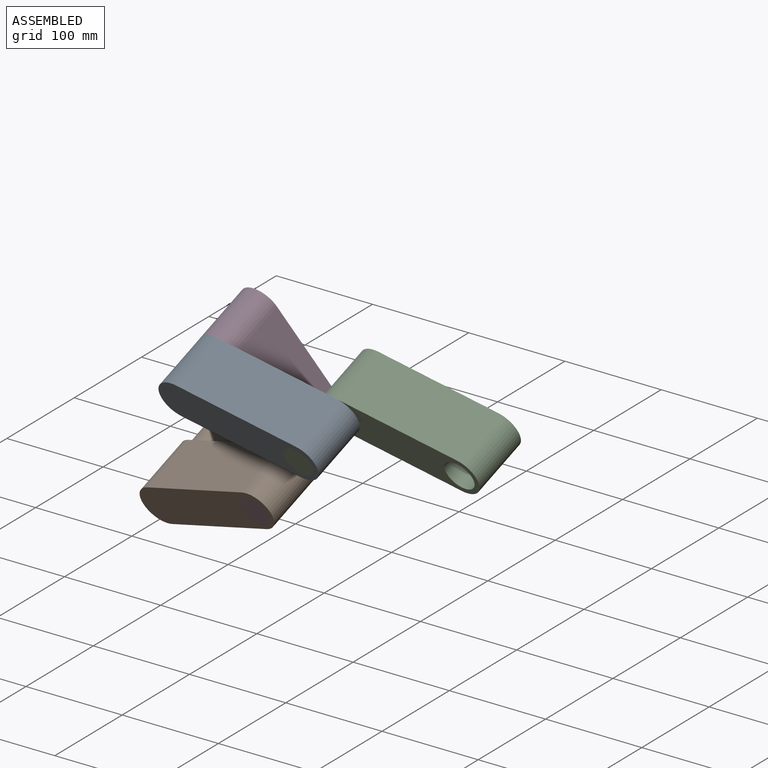
[diagram: assembled view]
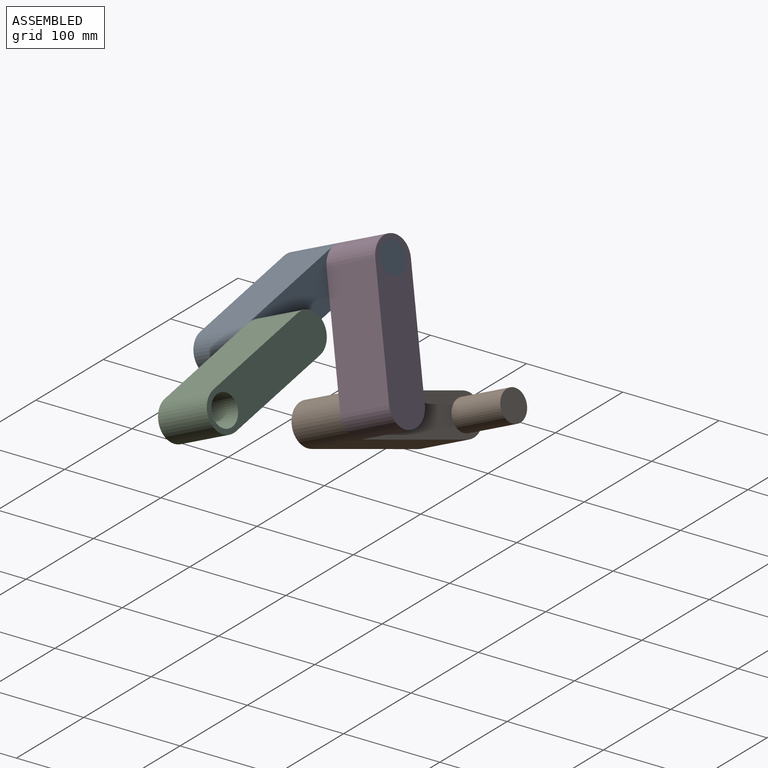
[diagram: assembled view, second angle]
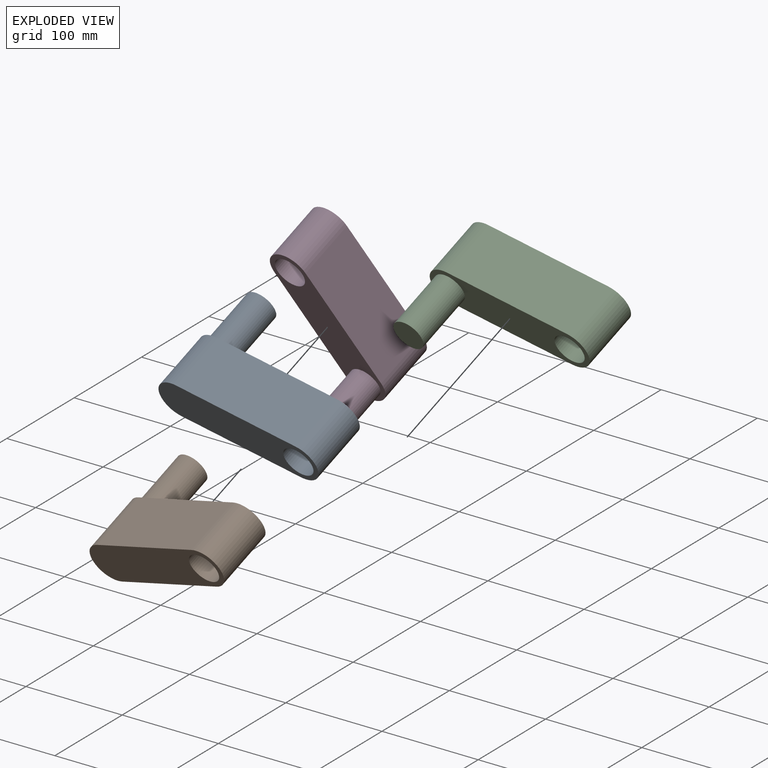
[diagram: exploded view]
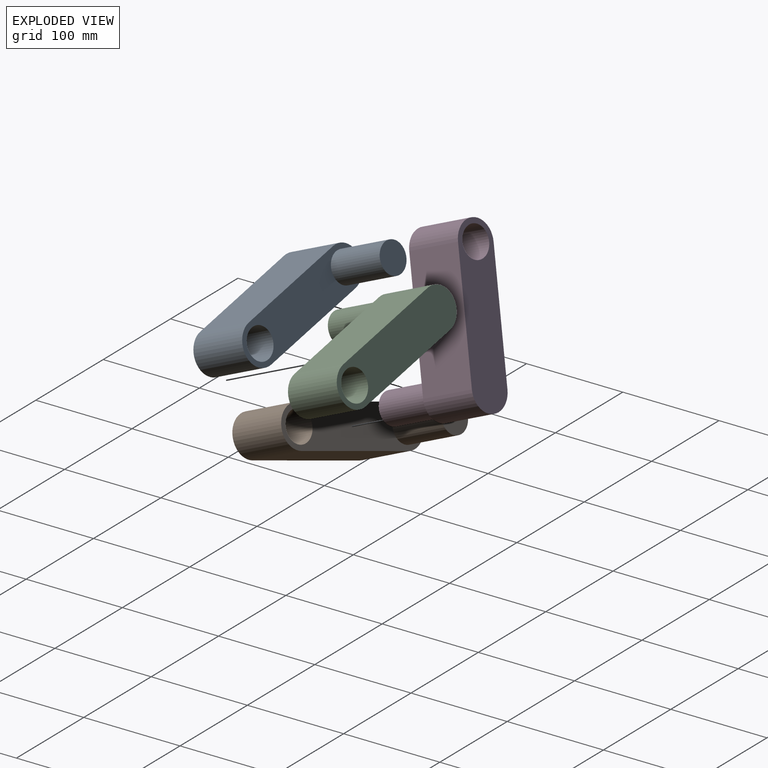
[diagram: exploded view, second angle]
ASSEMBLY  parts=4 mates=3
PART A: 9 faces, bbox 169.3x120x42.3 mm
  f0: cylinder r=21.17mm len=60mm, axis (0,1,0), area 3989.8mm2, adj f1,f3,f4,f5
  f1: plane 127x60mm, normal (0,0,-1), area 7620mm2, adj f0,f2,f4,f5
  f2: cylinder r=21.17mm len=60mm, axis (0,1,0), area 3989.8mm2, adj f1,f3,f4,f5
  f3: plane 127x60mm, normal (0,0,1), area 7620mm2, adj f0,f2,f4,f5
  f4: plane 169.33x42.33mm, normal (0,-1,0), area 5200.4mm2, adj f0,f1,f2,f3,f6,f8
  f5: plane 169.33x42.33mm, normal (0,1,0), area 5992.1mm2, adj f0,f1,f2,f3,f8
  f6: cylinder r=15.88mm len=60mm, axis (0,1,0), area 5984.7mm2, adj f4,f7
  f7: plane 31.75x31.75mm, normal (0,-1,0), area 791.7mm2, adj f6
  f8: cylinder r=15.88mm len=60mm, axis (0,-1,0), area 5984.7mm2, adj f4,f5
PART B: same geometry as A
PART C: same geometry as A
PART D: same geometry as A
PLACE A rot(axis=(-1,0.02,0.1),154.7deg) t=(-111.06,88.51,179.88)mm
PLACE B rot(axis=(-0.98,0.08,-0.17),156.3deg) t=(-186.49,149.33,64.29)mm
PLACE C rot(axis=(0.92,0.39,-0.09),27.6deg) t=(23.59,196.69,206.23)mm
PLACE D rot(axis=(0.11,-0.96,-0.24),112.1deg) t=(-140.49,220.26,188.04)mm
MATE revolute D.f2 <-> A.f0  axis (-0.08,-0.9,-0.42) through (-163.43,197,242.49)mm
MATE revolute C.f0 <-> A.f2  axis (-0.08,-0.9,-0.42) through (-48.72,88.41,167.79)mm
MATE revolute B.f2 <-> D.f0  axis (-0.08,-0.9,-0.42) through (-127.52,135.14,83.07)mm
